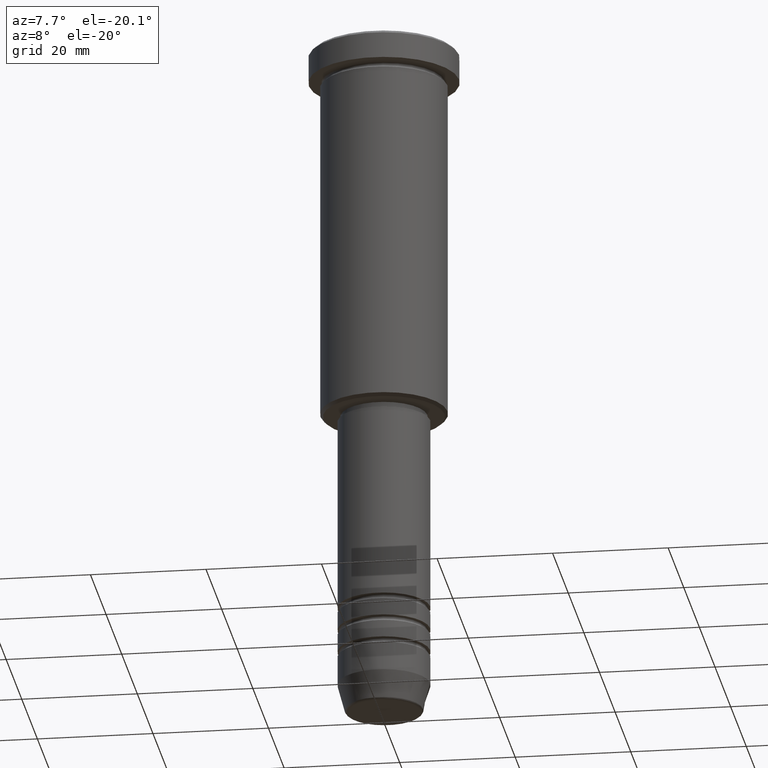
[diagram: clean part render]
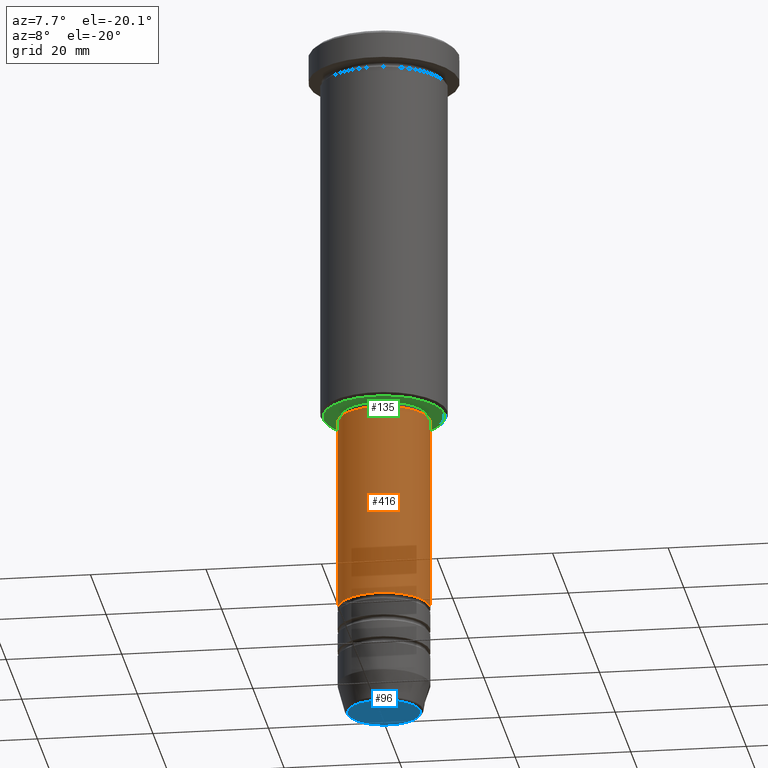
[diagram: same view with three faces highlighted in distinct colors, each labeled with its STEP entity id]
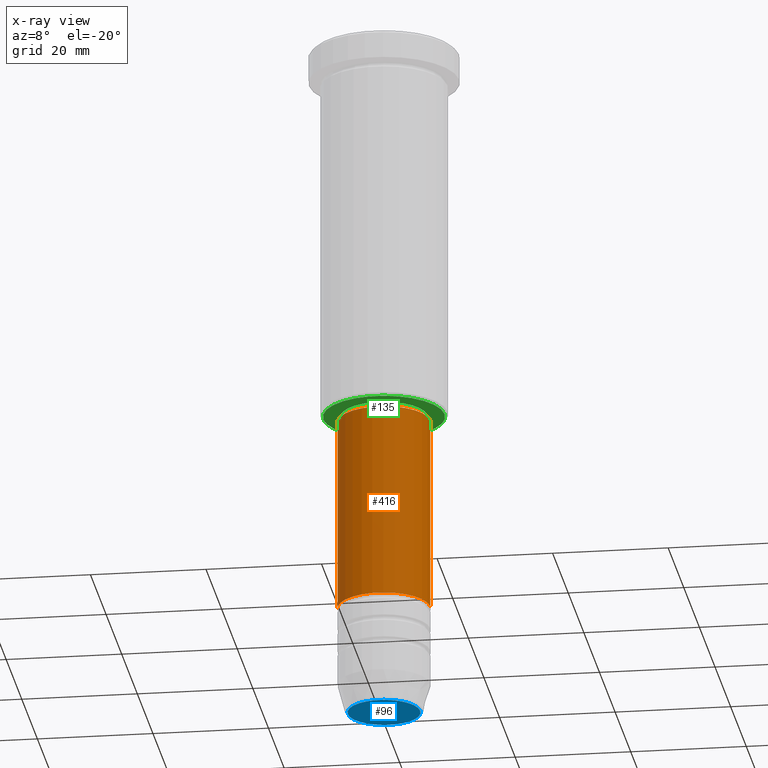
[diagram: x-ray of the same camera — body ghosted, the three highlighted faces saturated]
A machine part, auxiliary view with three faces highlighted in distinct colors.
The next image is the same camera in x-ray (body ghosted, the three faces saturated) — at least one of them is partly hidden behind the body in this view.
Their STEP definitions:

[orange] entity #416 — the highlighted cylindrical surface (partial cylindrical patch) has radius 8 mm, axis along (-0, -0, 1).
#23 = CARTESIAN_POINT ( 'NONE',  ( 0.000000000000000000, 0.000000000000000000, 0.000000000000000000 ) ) ;
#52 = ORIENTED_EDGE ( 'NONE', *, *, #272, .F. ) ;
#56 = DIRECTION ( 'NONE',  ( 1.000000000000000000, 0.000000000000000000, 0.000000000000000000 ) ) ;
#60 = AXIS2_PLACEMENT_3D ( 'NONE', #23, #927, #641 ) ;
#63 = VECTOR ( 'NONE', #947, 1000.000000000000000 ) ;
#98 = DIRECTION ( 'NONE',  ( -0.000000000000000000, -0.000000000000000000, 1.000000000000000000 ) ) ;
#102 = AXIS2_PLACEMENT_3D ( 'NONE', #380, #470, #403 ) ;
#156 = VERTEX_POINT ( 'NONE', #935 ) ;
#215 = CARTESIAN_POINT ( 'NONE',  ( 8.000000000000000000, 0.000000000000000000, -67.00000000000002842 ) ) ;
#255 = DIRECTION ( 'NONE',  ( -0.000000000000000000, -0.000000000000000000, 1.000000000000000000 ) ) ;
#262 = CARTESIAN_POINT ( 'NONE',  ( -8.000000000000000000, 9.797174393178825657E-16, -100.9999999999999716 ) ) ;
#264 = EDGE_LOOP ( 'NONE', ( #52, #766, #287, #1079 ) ) ;
#272 = EDGE_CURVE ( 'NONE', #502, #688, #639, .T. ) ;
#287 = ORIENTED_EDGE ( 'NONE', *, *, #1153, .T. ) ;
#303 = AXIS2_PLACEMENT_3D ( 'NONE', #876, #255, #56 ) ;
#347 = VECTOR ( 'NONE', #98, 1000.000000000000000 ) ;
#380 = CARTESIAN_POINT ( 'NONE',  ( 0.000000000000000000, 0.000000000000000000, -100.9999999999999716 ) ) ;
#403 = DIRECTION ( 'NONE',  ( 1.000000000000000000, 0.000000000000000000, 0.000000000000000000 ) ) ;
#416 = ADVANCED_FACE ( 'NONE', ( #451 ), #732, .T. ) ;
#451 = FACE_OUTER_BOUND ( 'NONE', #264, .T. ) ;
#470 = DIRECTION ( 'NONE',  ( -0.000000000000000000, -0.000000000000000000, 1.000000000000000000 ) ) ;
#502 = VERTEX_POINT ( 'NONE', #262 ) ;
#540 = EDGE_CURVE ( 'NONE', #688, #1147, #726, .T. ) ;
#543 = CARTESIAN_POINT ( 'NONE',  ( -8.000000000000000000, 9.797174393178825657E-16, 0.000000000000000000 ) ) ;
#569 = LINE ( 'NONE', #944, #63 ) ;
#639 = LINE ( 'NONE', #543, #347 ) ;
#641 = DIRECTION ( 'NONE',  ( 1.000000000000000000, 0.000000000000000000, 0.000000000000000000 ) ) ;
#688 = VERTEX_POINT ( 'NONE', #1128 ) ;
#726 = CIRCLE ( 'NONE', #303, 8.000000000000000000 ) ;
#732 = CYLINDRICAL_SURFACE ( 'NONE', #60, 8.000000000000000000 ) ;
#766 = ORIENTED_EDGE ( 'NONE', *, *, #1084, .T. ) ;
#876 = CARTESIAN_POINT ( 'NONE',  ( 0.000000000000000000, 0.000000000000000000, -67.00000000000002842 ) ) ;
#927 = DIRECTION ( 'NONE',  ( -0.000000000000000000, -0.000000000000000000, 1.000000000000000000 ) ) ;
#935 = CARTESIAN_POINT ( 'NONE',  ( 8.000000000000000000, 0.000000000000000000, -100.9999999999999716 ) ) ;
#944 = CARTESIAN_POINT ( 'NONE',  ( 8.000000000000000000, 0.000000000000000000, 0.000000000000000000 ) ) ;
#947 = DIRECTION ( 'NONE',  ( -0.000000000000000000, -0.000000000000000000, 1.000000000000000000 ) ) ;
#1079 = ORIENTED_EDGE ( 'NONE', *, *, #540, .F. ) ;
#1084 = EDGE_CURVE ( 'NONE', #502, #156, #1110, .T. ) ;
#1110 = CIRCLE ( 'NONE', #102, 8.000000000000000000 ) ;
#1128 = CARTESIAN_POINT ( 'NONE',  ( -8.000000000000000000, 9.797174393178825657E-16, -67.00000000000002842 ) ) ;
#1147 = VERTEX_POINT ( 'NONE', #215 ) ;
#1153 = EDGE_CURVE ( 'NONE', #156, #1147, #569, .T. ) ;

[blue] entity #96 — the highlighted planar face has unit normal (0, -0, 1).
#2 = DIRECTION ( 'NONE',  ( 1.000000000000000000, 0.000000000000000000, 0.000000000000000000 ) ) ;
#30 = EDGE_LOOP ( 'NONE', ( #1047, #261 ) ) ;
#96 = ADVANCED_FACE ( 'NONE', ( #812 ), #986, .F. ) ;
#115 = AXIS2_PLACEMENT_3D ( 'NONE', #453, #819, #2 ) ;
#143 = AXIS2_PLACEMENT_3D ( 'NONE', #609, #1168, #784 ) ;
#158 = EDGE_CURVE ( 'NONE', #1104, #896, #634, .T. ) ;
#161 = CARTESIAN_POINT ( 'NONE',  ( 0.000000000000000000, 0.000000000000000000, -120.0000000000000000 ) ) ;
#230 = CIRCLE ( 'NONE', #143, 6.276590543854900339 ) ;
#261 = ORIENTED_EDGE ( 'NONE', *, *, #158, .T. ) ;
#429 = CARTESIAN_POINT ( 'NONE',  ( 6.276590543854900339, 0.000000000000000000, -120.0000000000000000 ) ) ;
#453 = CARTESIAN_POINT ( 'NONE',  ( 0.000000000000000000, 0.000000000000000000, -120.0000000000000000 ) ) ;
#506 = DIRECTION ( 'NONE',  ( 0.000000000000000000, -0.000000000000000000, 1.000000000000000000 ) ) ;
#609 = CARTESIAN_POINT ( 'NONE',  ( 0.000000000000000000, 0.000000000000000000, -120.0000000000000000 ) ) ;
#634 = CIRCLE ( 'NONE', #115, 6.276590543854900339 ) ;
#683 = AXIS2_PLACEMENT_3D ( 'NONE', #161, #506, #792 ) ;
#784 = DIRECTION ( 'NONE',  ( 1.000000000000000000, 0.000000000000000000, 0.000000000000000000 ) ) ;
#792 = DIRECTION ( 'NONE',  ( 1.000000000000000000, 0.000000000000000000, 0.000000000000000000 ) ) ;
#812 = FACE_OUTER_BOUND ( 'NONE', #30, .T. ) ;
#819 = DIRECTION ( 'NONE',  ( 0.000000000000000000, 0.000000000000000000, -1.000000000000000000 ) ) ;
#896 = VERTEX_POINT ( 'NONE', #429 ) ;
#934 = EDGE_CURVE ( 'NONE', #896, #1104, #230, .T. ) ;
#986 = PLANE ( 'NONE',  #683 ) ;
#1047 = ORIENTED_EDGE ( 'NONE', *, *, #934, .T. ) ;
#1104 = VERTEX_POINT ( 'NONE', #1115 ) ;
#1115 = CARTESIAN_POINT ( 'NONE',  ( -6.276590543854900339, 7.982336011935116411E-16, -120.0000000000000000 ) ) ;
#1168 = DIRECTION ( 'NONE',  ( 0.000000000000000000, 0.000000000000000000, -1.000000000000000000 ) ) ;

[green] entity #135 — the highlighted planar face has unit normal (0, 0, -1).
#15 = EDGE_CURVE ( 'NONE', #285, #984, #1030, .T. ) ;
#135 = ADVANCED_FACE ( 'NONE', ( #206, #541 ), #740, .T. ) ;
#183 = AXIS2_PLACEMENT_3D ( 'NONE', #528, #1078, #637 ) ;
#196 = CIRCLE ( 'NONE', #860, 7.500000000000000000 ) ;
#206 = FACE_OUTER_BOUND ( 'NONE', #675, .T. ) ;
#211 = CARTESIAN_POINT ( 'NONE',  ( 0.000000000000000000, 11.00000000000000000, -66.00000000000000000 ) ) ;
#237 = DIRECTION ( 'NONE',  ( 1.000000000000000000, 0.000000000000000000, 0.000000000000000000 ) ) ;
#246 = ORIENTED_EDGE ( 'NONE', *, *, #304, .T. ) ;
#285 = VERTEX_POINT ( 'NONE', #570 ) ;
#304 = EDGE_CURVE ( 'NONE', #315, #553, #1106, .T. ) ;
#315 = VERTEX_POINT ( 'NONE', #923 ) ;
#319 = AXIS2_PLACEMENT_3D ( 'NONE', #211, #928, #654 ) ;
#493 = DIRECTION ( 'NONE',  ( 1.000000000000000000, 0.000000000000000000, 0.000000000000000000 ) ) ;
#494 = CARTESIAN_POINT ( 'NONE',  ( 0.000000000000000000, 0.000000000000000000, -66.00000000000000000 ) ) ;
#515 = DIRECTION ( 'NONE',  ( -0.000000000000000000, -0.000000000000000000, 1.000000000000000000 ) ) ;
#520 = CARTESIAN_POINT ( 'NONE',  ( -10.50000000000000888, 1.316495309083405209E-15, -66.00000000000000000 ) ) ;
#528 = CARTESIAN_POINT ( 'NONE',  ( 0.000000000000000000, 0.000000000000000000, -66.00000000000000000 ) ) ;
#539 = ORIENTED_EDGE ( 'NONE', *, *, #768, .T. ) ;
#541 = FACE_BOUND ( 'NONE', #724, .T. ) ;
#553 = VERTEX_POINT ( 'NONE', #903 ) ;
#570 = CARTESIAN_POINT ( 'NONE',  ( 10.50000000000000888, 0.000000000000000000, -66.00000000000000000 ) ) ;
#582 = DIRECTION ( 'NONE',  ( -1.000000000000000000, 0.000000000000000000, 0.000000000000000000 ) ) ;
#637 = DIRECTION ( 'NONE',  ( -1.000000000000000000, 0.000000000000000000, 0.000000000000000000 ) ) ;
#638 = ORIENTED_EDGE ( 'NONE', *, *, #977, .T. ) ;
#654 = DIRECTION ( 'NONE',  ( -1.000000000000000000, 0.000000000000000000, -0.000000000000000000 ) ) ;
#675 = EDGE_LOOP ( 'NONE', ( #834, #638 ) ) ;
#682 = DIRECTION ( 'NONE',  ( -0.000000000000000000, -0.000000000000000000, 1.000000000000000000 ) ) ;
#724 = EDGE_LOOP ( 'NONE', ( #539, #246 ) ) ;
#740 = PLANE ( 'NONE',  #319 ) ;
#751 = DIRECTION ( 'NONE',  ( 0.000000000000000000, 0.000000000000000000, -1.000000000000000000 ) ) ;
#768 = EDGE_CURVE ( 'NONE', #553, #315, #196, .T. ) ;
#834 = ORIENTED_EDGE ( 'NONE', *, *, #15, .T. ) ;
#848 = CIRCLE ( 'NONE', #183, 10.50000000000000888 ) ;
#860 = AXIS2_PLACEMENT_3D ( 'NONE', #1137, #682, #237 ) ;
#903 = CARTESIAN_POINT ( 'NONE',  ( 7.500000000000000000, 0.000000000000000000, -66.00000000000000000 ) ) ;
#923 = CARTESIAN_POINT ( 'NONE',  ( -7.500000000000000000, 9.184850993605147944E-16, -66.00000000000000000 ) ) ;
#928 = DIRECTION ( 'NONE',  ( 0.000000000000000000, 0.000000000000000000, -1.000000000000000000 ) ) ;
#977 = EDGE_CURVE ( 'NONE', #984, #285, #848, .T. ) ;
#984 = VERTEX_POINT ( 'NONE', #520 ) ;
#1030 = CIRCLE ( 'NONE', #1088, 10.50000000000000888 ) ;
#1033 = AXIS2_PLACEMENT_3D ( 'NONE', #1095, #515, #493 ) ;
#1078 = DIRECTION ( 'NONE',  ( 0.000000000000000000, 0.000000000000000000, -1.000000000000000000 ) ) ;
#1088 = AXIS2_PLACEMENT_3D ( 'NONE', #494, #751, #582 ) ;
#1095 = CARTESIAN_POINT ( 'NONE',  ( 0.000000000000000000, 0.000000000000000000, -66.00000000000000000 ) ) ;
#1106 = CIRCLE ( 'NONE', #1033, 7.500000000000000000 ) ;
#1137 = CARTESIAN_POINT ( 'NONE',  ( 0.000000000000000000, 0.000000000000000000, -66.00000000000000000 ) ) ;